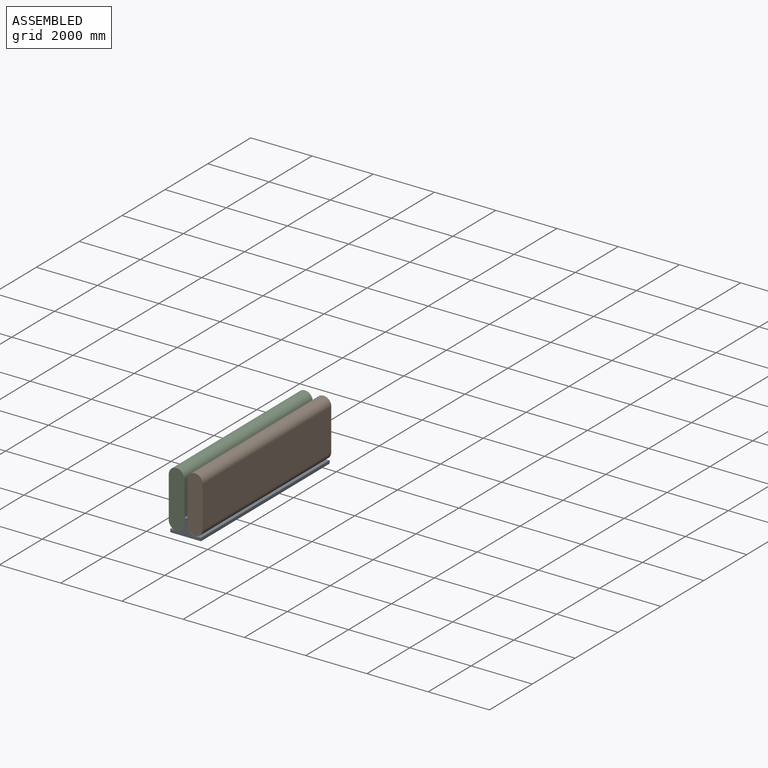
[diagram: assembled view]
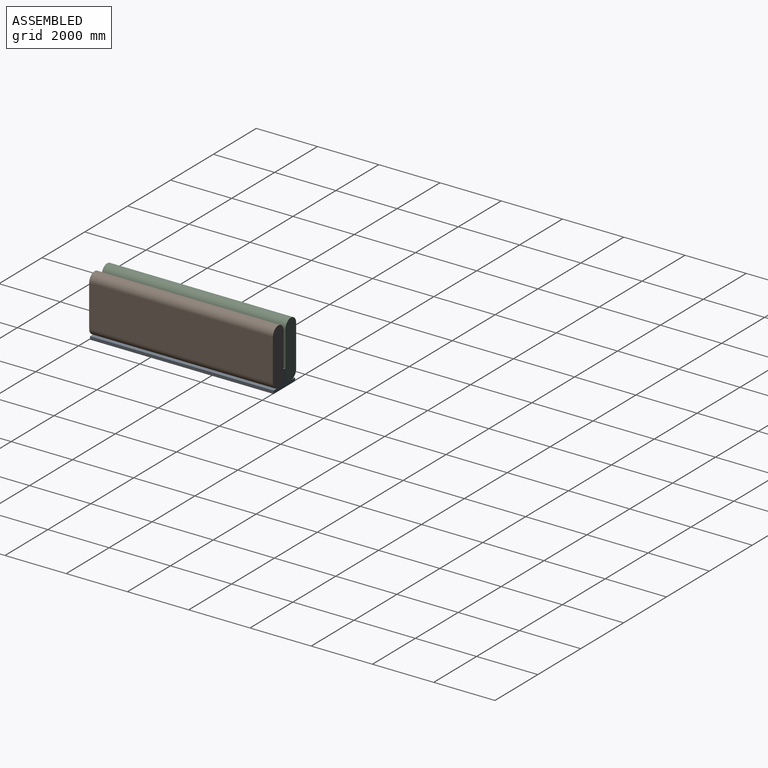
[diagram: assembled view, second angle]
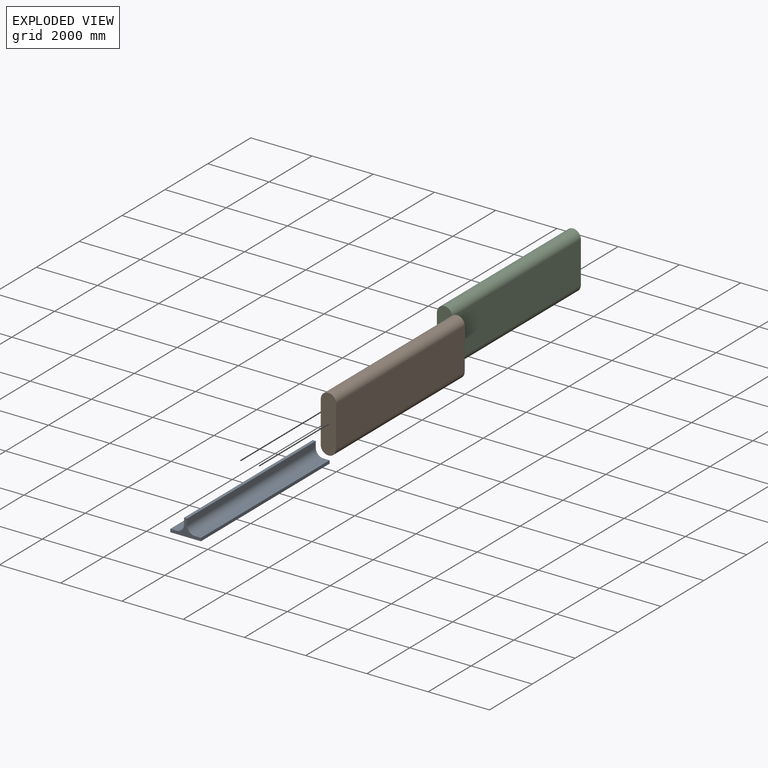
[diagram: exploded view]
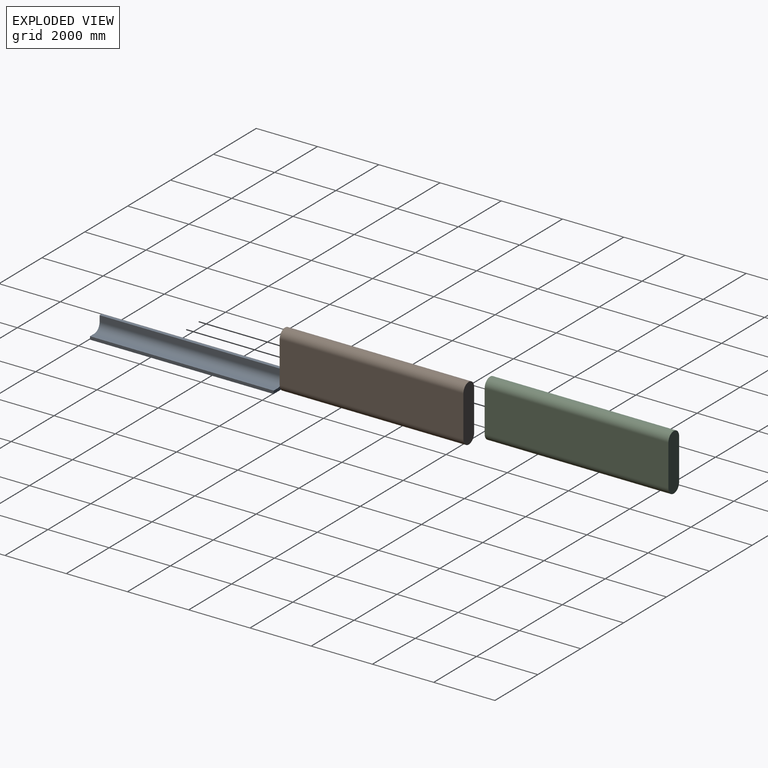
[diagram: exploded view, second angle]
ASSEMBLY  parts=3 mates=2
PART A: 12 faces, bbox 1000x6000x550 mm
  f0: plane 6000x200mm, normal (1,0,0), area 1200000mm2, adj f1,f8,f9,f11
  f1: plane 6000x100mm, normal (0,0,1), area 600000mm2, adj f0,f2,f8,f9
  f2: plane 6000x200mm, normal (-1,0,0), area 1200000mm2, adj f1,f8,f9,f10
  f3: plane 6000x200mm, normal (0,0,1), area 1200000mm2, adj f4,f8,f9,f10
  f4: plane 6000x100mm, normal (-1,0,0), area 600000mm2, adj f3,f5,f8,f9
  f5: plane 6000x1000mm, normal (0,0,-1), area 6000000mm2, adj f4,f6,f8,f9
  f6: plane 6000x100mm, normal (1,0,0), area 600000mm2, adj f5,f7,f8,f9
  f7: plane 6000x200mm, normal (0,0,1), area 1200000mm2, adj f6,f8,f9,f11
  f8: plane 1000x550mm, normal (0,-1,0), area 171825.2mm2, adj f0,f1,f2,f3,f4,f5,f6,f7
  f9: plane 1000x550mm, normal (0,1,0), area 171825.2mm2, adj f0,f1,f2,f3,f4,f5,f6,f7
  f10: cylinder r=250mm len=6000mm, axis (0,-1,0), area 2356194.5mm2, adj f2,f3,f8,f9
  f11: cylinder r=250mm len=6000mm, axis (0,-1,0), area 2356194.5mm2, adj f0,f7,f8,f9
PART B: 6 faces, bbox 1850x6000x500 mm
  f0: plane 6000x1350mm, normal (0,0,-1), area 8100000mm2, adj f2,f3,f4,f5
  f1: plane 6000x1350mm, normal (0,0,1), area 8100000mm2, adj f2,f3,f4,f5
  f2: plane 1850x500mm, normal (0,-1,0), area 871349.5mm2, adj f0,f1,f4,f5
  f3: plane 1850x500mm, normal (0,1,0), area 871349.5mm2, adj f0,f1,f4,f5
  f4: cylinder r=250mm len=6000mm, axis (0,-1,0), area 4712389mm2, adj f0,f1,f2,f3
  f5: cylinder r=250mm len=6000mm, axis (0,1,0), area 4712389mm2, adj f0,f1,f2,f3
PART C: same geometry as B
PLACE A t=(-823.54,2146.04,-842.74)mm
PLACE B rot(axis=(0,-1,0),90deg) t=(-273.54,2156.04,182.26)mm
PLACE C rot(axis=(0,1,0),90deg) t=(-1373.54,2146.04,182.26)mm
MATE slider B.f4 <-> A.f11  axis (0,-1,0) through (-523.54,-843.96,-492.74)mm
MATE slider C.f5 <-> A.f10  axis (0,1,0) through (-1123.54,-853.96,-492.74)mm
